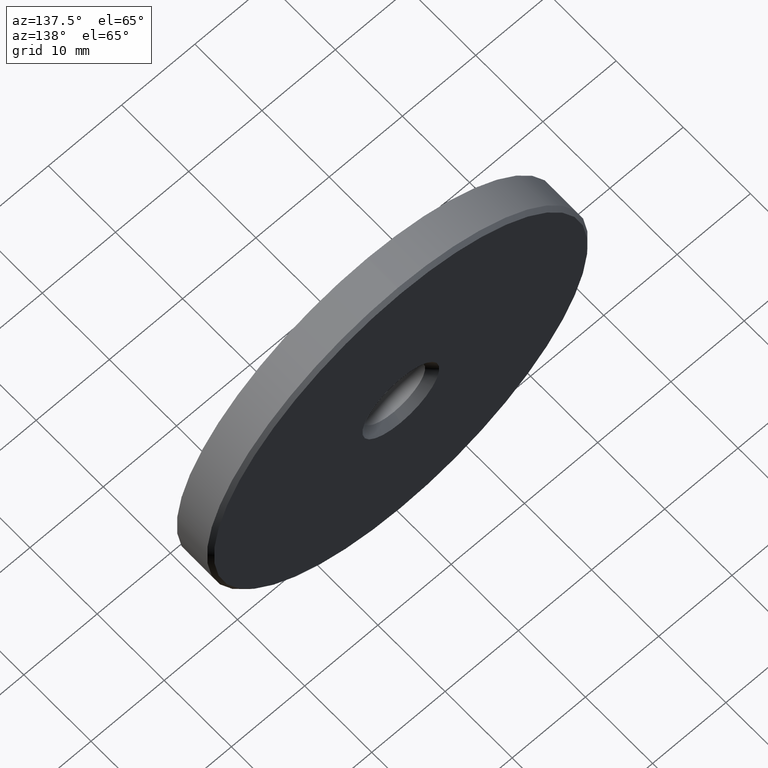
[diagram: clean part render]
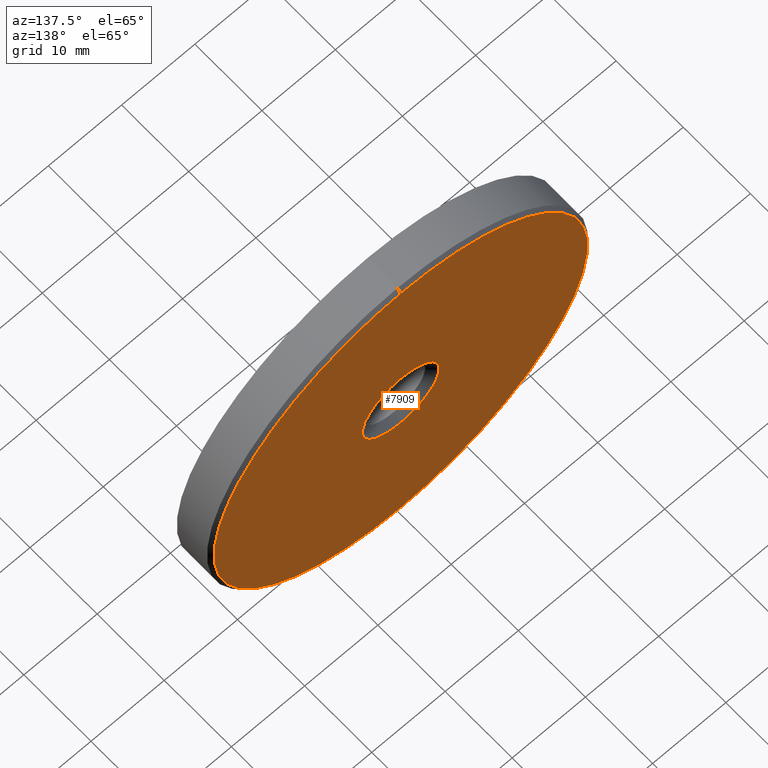
[diagram: same view with one face highlighted and labeled with its STEP entity id]
A machine part, auxiliary view. The second image highlights one B-rep face of the part: STEP entity #7909.
In plain terms, the highlighted planar face has unit normal (0, 1, 0).
Its self-contained STEP definition (entity closure, byte-faithful):
#113 = AXIS2_PLACEMENT_3D ( 'NONE', #8237, #3440, #15410 ) ;
#117 = VERTEX_POINT ( 'NONE', #4047 ) ;
#321 = AXIS2_PLACEMENT_3D ( 'NONE', #4603, #14133, #2088 ) ;
#989 = CARTESIAN_POINT ( 'NONE',  ( 0.000000000000000000, 2.500000000000000000, 0.000000000000000000 ) ) ;
#1067 = VERTEX_POINT ( 'NONE', #11909 ) ;
#1430 = VERTEX_POINT ( 'NONE', #9708 ) ;
#1873 = ORIENTED_EDGE ( 'NONE', *, *, #14026, .T. ) ;
#2088 = DIRECTION ( 'NONE',  ( 0.000000000000000000, -0.000000000000000000, 1.000000000000000000 ) ) ;
#2330 = DIRECTION ( 'NONE',  ( 0.000000000000000000, 0.000000000000000000, 1.000000000000000000 ) ) ;
#2896 = CARTESIAN_POINT ( 'NONE',  ( 3.153465507804434404E-15, 2.500000000000000000, 25.50000000000000000 ) ) ;
#2929 = EDGE_CURVE ( 'NONE', #1067, #6262, #8506, .T. ) ;
#2951 = DIRECTION ( 'NONE',  ( -0.000000000000000000, -1.000000000000000000, -0.000000000000000000 ) ) ;
#3440 = DIRECTION ( 'NONE',  ( 0.000000000000000000, 1.000000000000000000, 0.000000000000000000 ) ) ;
#3448 = CARTESIAN_POINT ( 'NONE',  ( 0.000000000000000000, 2.500000000000000000, 0.000000000000000000 ) ) ;
#3872 = AXIS2_PLACEMENT_3D ( 'NONE', #3448, #9513, #2330 ) ;
#4047 = CARTESIAN_POINT ( 'NONE',  ( 6.429395695523601195E-16, 2.500000000000000000, -5.249999999999997335 ) ) ;
#4603 = CARTESIAN_POINT ( 'NONE',  ( 1.000000000000000000, 2.500000000000000000, 0.000000000000000000 ) ) ;
#5011 = ORIENTED_EDGE ( 'NONE', *, *, #2929, .T. ) ;
#5131 = CIRCLE ( 'NONE', #7583, 25.50000000000000000 ) ;
#5428 = CARTESIAN_POINT ( 'NONE',  ( 0.000000000000000000, 2.500000000000000000, 0.000000000000000000 ) ) ;
#6262 = VERTEX_POINT ( 'NONE', #2896 ) ;
#7583 = AXIS2_PLACEMENT_3D ( 'NONE', #989, #14230, #9417 ) ;
#7909 = ADVANCED_FACE ( 'NONE', ( #11541, #9486 ), #10419, .T. ) ;
#7937 = CIRCLE ( 'NONE', #3872, 5.249999999999997335 ) ;
#8037 = ORIENTED_EDGE ( 'NONE', *, *, #8690, .T. ) ;
#8237 = CARTESIAN_POINT ( 'NONE',  ( 0.000000000000000000, 2.500000000000000000, 0.000000000000000000 ) ) ;
#8295 = AXIS2_PLACEMENT_3D ( 'NONE', #5428, #2951, #14876 ) ;
#8483 = EDGE_CURVE ( 'NONE', #6262, #1067, #5131, .T. ) ;
#8506 = CIRCLE ( 'NONE', #113, 25.50000000000000000 ) ;
#8690 = EDGE_CURVE ( 'NONE', #1430, #117, #7937, .T. ) ;
#9417 = DIRECTION ( 'NONE',  ( 0.000000000000000000, 0.000000000000000000, 1.000000000000000000 ) ) ;
#9486 = FACE_OUTER_BOUND ( 'NONE', #14833, .T. ) ;
#9513 = DIRECTION ( 'NONE',  ( -0.000000000000000000, -1.000000000000000000, -0.000000000000000000 ) ) ;
#9708 = CARTESIAN_POINT ( 'NONE',  ( 0.000000000000000000, 2.500000000000000000, 5.249999999999997335 ) ) ;
#10419 = PLANE ( 'NONE',  #321 ) ;
#11354 = ORIENTED_EDGE ( 'NONE', *, *, #8483, .T. ) ;
#11505 = CIRCLE ( 'NONE', #8295, 5.249999999999997335 ) ;
#11541 = FACE_BOUND ( 'NONE', #13367, .T. ) ;
#11909 = CARTESIAN_POINT ( 'NONE',  ( 0.000000000000000000, 2.500000000000000000, -25.50000000000000000 ) ) ;
#13367 = EDGE_LOOP ( 'NONE', ( #8037, #1873 ) ) ;
#14026 = EDGE_CURVE ( 'NONE', #117, #1430, #11505, .T. ) ;
#14133 = DIRECTION ( 'NONE',  ( 0.000000000000000000, 1.000000000000000000, 0.000000000000000000 ) ) ;
#14230 = DIRECTION ( 'NONE',  ( 0.000000000000000000, 1.000000000000000000, 0.000000000000000000 ) ) ;
#14833 = EDGE_LOOP ( 'NONE', ( #5011, #11354 ) ) ;
#14876 = DIRECTION ( 'NONE',  ( 0.000000000000000000, 0.000000000000000000, 1.000000000000000000 ) ) ;
#15410 = DIRECTION ( 'NONE',  ( 0.000000000000000000, 0.000000000000000000, 1.000000000000000000 ) ) ;